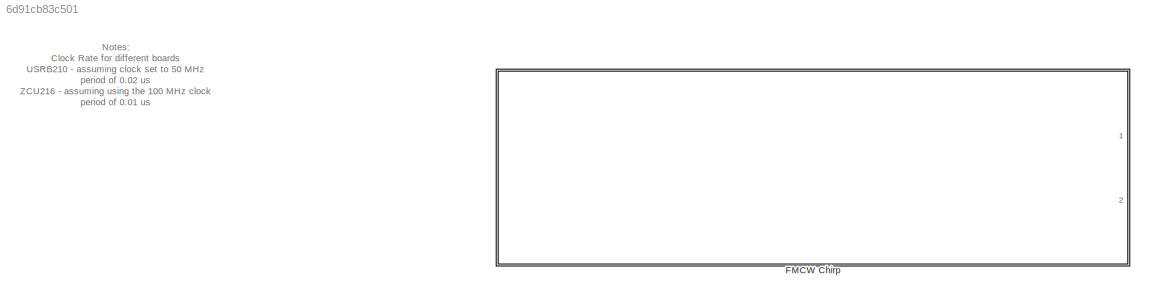
MODEL slx_6d91cb83c501
KIND model
CONFIG AbsTol = auto
CONFIG EnableMultiTasking = off
CONFIG FixedStep = auto
CONFIG MaxStep = auto
CONFIG MinStep = auto
CONFIG RelTol = 1e-3
CONFIG SampleTimeConstraint = Unconstrained
CONFIG SolverName = VariableStepAuto
CONFIG StartTime = 0.0
CONFIG StopTime = 100e-3
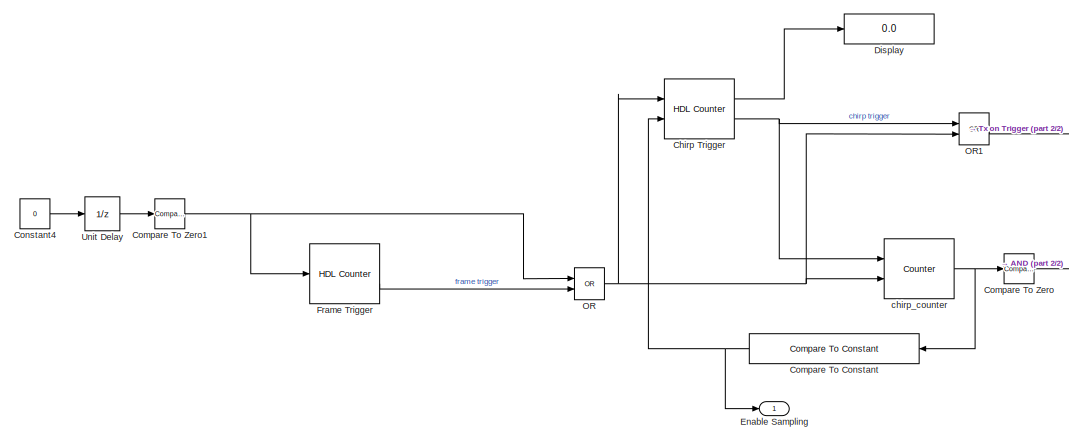
[diagram: FMCW Chirp - part 1/2, left side, full height]
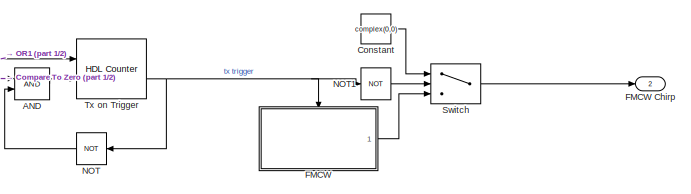
[diagram: FMCW Chirp - part 2/2, middle right region]
BLOCK [SubSystem] FMCW Chirp
  Ports = [0, 2]
  RequestExecContextInheritance = off
BLOCK [Logic] FMCW Chirp/AND
  AllPortsSameDT = off
  IconShape = distinctive
  OutDataTypeStr = boolean
  Ports = [2, 1]
BLOCK [Reference] FMCW Chirp/Chirp Trigger  REF=hdlsllib/Sources/HDL Counter
  Ports = [2, 2]
  SourceBlock = hdlsllib/Sources/HDL Counter
  SourceProductBaseCode = SL
  SourceType = HDL Counter
BLOCK [Reference] FMCW Chirp/Compare To Constant  REF=simulink/Logic and Bit
Operations/Compare
To Constant
  Ports = [1, 1]
  SourceBlock = simulink/Logic and Bit\nOperations/Compare\nTo Constant
  SourceProductBaseCode = SL
  SourceType = Compare To Constant
BLOCK [Reference] FMCW Chirp/Compare To Zero  REF=hdlsllib/Logic and Bit
Operations/Compare
To Zero
  Ports = [1, 1]
  SourceBlock = hdlsllib/Logic and Bit\nOperations/Compare\nTo Zero
  SourceProductBaseCode = SL
  SourceType = Compare To Zero
BLOCK [Reference] FMCW Chirp/Compare To Zero1  REF=simulink/Logic and Bit
Operations/Compare
To Zero
  Ports = [1, 1]
  SourceBlock = simulink/Logic and Bit\nOperations/Compare\nTo Zero
  SourceProductBaseCode = SL
  SourceType = Compare To Zero
BLOCK [Constant] FMCW Chirp/Constant
  Value = complex(0,0)
BLOCK [Constant] FMCW Chirp/Constant4
  Value = 0
BLOCK [Display] FMCW Chirp/Display
  Decimation = 1
  Ports = [1]
BLOCK [Outport] FMCW Chirp/Enable Sampling
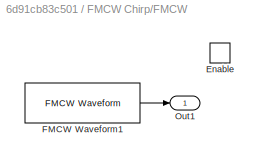
BLOCK [SubSystem] FMCW Chirp/FMCW
  Ports = [0, 1, 1]
  RequestExecContextInheritance = off
BLOCK [Outport] FMCW Chirp/FMCW Chirp
  Port = 2
BLOCK [EnablePort] FMCW Chirp/FMCW/Enable
  Ports = []
  StatesWhenEnabling = reset
BLOCK [Reference] FMCW Chirp/FMCW/FMCW Waveform1  REF=phasedwavlib/FMCW Waveform
  Ports = [0, 1]
  SourceBlock = phasedwavlib/FMCW Waveform
  SourceProductBaseCode = AR
  SourceType = phased.FMCWWaveform
BLOCK [Outport] FMCW Chirp/FMCW/Out1
BLOCK [Reference] FMCW Chirp/Frame Trigger  REF=hdlsllib/Sources/HDL Counter
  Ports = [1, 2]
  SourceBlock = hdlsllib/Sources/HDL Counter
  SourceProductBaseCode = SL
  SourceType = HDL Counter
BLOCK [Logic] FMCW Chirp/NOT
  AllPortsSameDT = off
  IconShape = distinctive
  Operator = NOT
  OutDataTypeStr = boolean
  Ports = [1, 1]
BLOCK [Logic] FMCW Chirp/NOT1
  AllPortsSameDT = off
  IconShape = distinctive
  Operator = NOT
  OutDataTypeStr = boolean
  Ports = [1, 1]
BLOCK [Logic] FMCW Chirp/OR
  AllPortsSameDT = off
  IconShape = distinctive
  Operator = OR
  OutDataTypeStr = boolean
  Ports = [2, 1]
BLOCK [Logic] FMCW Chirp/OR1
  AllPortsSameDT = off
  IconShape = distinctive
  Operator = OR
  OutDataTypeStr = boolean
  Ports = [2, 1]
BLOCK [Switch] FMCW Chirp/Switch
  Criteria = u2 > Threshold
  InputSameDT = off
  SaturateOnIntegerOverflow = off
BLOCK [Reference] FMCW Chirp/Tx on Trigger  REF=hdlsllib/Sources/HDL Counter
  Ports = [2, 2]
  SourceBlock = hdlsllib/Sources/HDL Counter
  SourceProductBaseCode = SL
  SourceType = HDL Counter
BLOCK [UnitDelay] FMCW Chirp/Unit Delay
  HasFrameUpgradeWarning = on
  InitialCondition = 1
  SampleTime = -1
BLOCK [Reference] FMCW Chirp/chirp_counter  REF=dspswit3/Counter
  Ports = [2, 1]
  SourceBlock = dspswit3/Counter
  SourceProductBaseCode = DS
  SourceType = Counter
ANNOTATION (root): Notes: Clock Rate for different boards USRB210 - assuming clock set to 50 MHz period of 0.02 us ZCU216 - assuming using the 100 MHz clock period of 0.01 us Using 16-bit unsigned integers for counting Frame rate frame rate resolution is 0.01 ms or 10 us min frame rate = 2 Hz Chirp cycle period resolution of 0.01 (100 MHz clock) or 0.02 (50 MHz clock) max chirp cycle period is 655.35 us
LINE FMCW Chirp/AND:1 -> FMCW Chirp/Tx on Trigger:2
LINE FMCW Chirp/Chirp Trigger:1 -> FMCW Chirp/Display:1
NET FMCW Chirp/Chirp Trigger:2 -> FMCW Chirp/OR1:1, FMCW Chirp/chirp_counter:1
NET FMCW Chirp/Compare To Constant:1 -> FMCW Chirp/Chirp Trigger:2, FMCW Chirp/Enable Sampling:1
NET FMCW Chirp/Compare To Zero1:1 -> FMCW Chirp/Frame Trigger:1, FMCW Chirp/OR:1
LINE FMCW Chirp/Compare To Zero:1 -> FMCW Chirp/AND:1
LINE FMCW Chirp/Constant4:1 -> FMCW Chirp/Unit Delay:1
LINE FMCW Chirp/Constant:1 -> FMCW Chirp/Switch:1
LINE FMCW Chirp/FMCW/FMCW Waveform1:1 -> FMCW Chirp/FMCW/Out1:1
LINE FMCW Chirp/FMCW:1 -> FMCW Chirp/Switch:3
LINE FMCW Chirp/Frame Trigger:2 -> FMCW Chirp/OR:2
LINE FMCW Chirp/NOT1:1 -> FMCW Chirp/Switch:2
LINE FMCW Chirp/NOT:1 -> FMCW Chirp/AND:2
LINE FMCW Chirp/OR1:1 -> FMCW Chirp/Tx on Trigger:1
NET FMCW Chirp/OR:1 -> FMCW Chirp/Chirp Trigger:1, FMCW Chirp/OR1:2, FMCW Chirp/chirp_counter:2
LINE FMCW Chirp/Switch:1 -> FMCW Chirp/FMCW Chirp:1
NET FMCW Chirp/Tx on Trigger:2 -> FMCW Chirp/FMCW:enable, FMCW Chirp/NOT1:1, FMCW Chirp/NOT:1
LINE FMCW Chirp/Unit Delay:1 -> FMCW Chirp/Compare To Zero1:1
NET FMCW Chirp/chirp_counter:1 -> FMCW Chirp/Compare To Constant:1, FMCW Chirp/Compare To Zero:1
note: NET lines group one-source signal fan-out (src -> all destinations, sorted); 1:1 wires keep LINE
